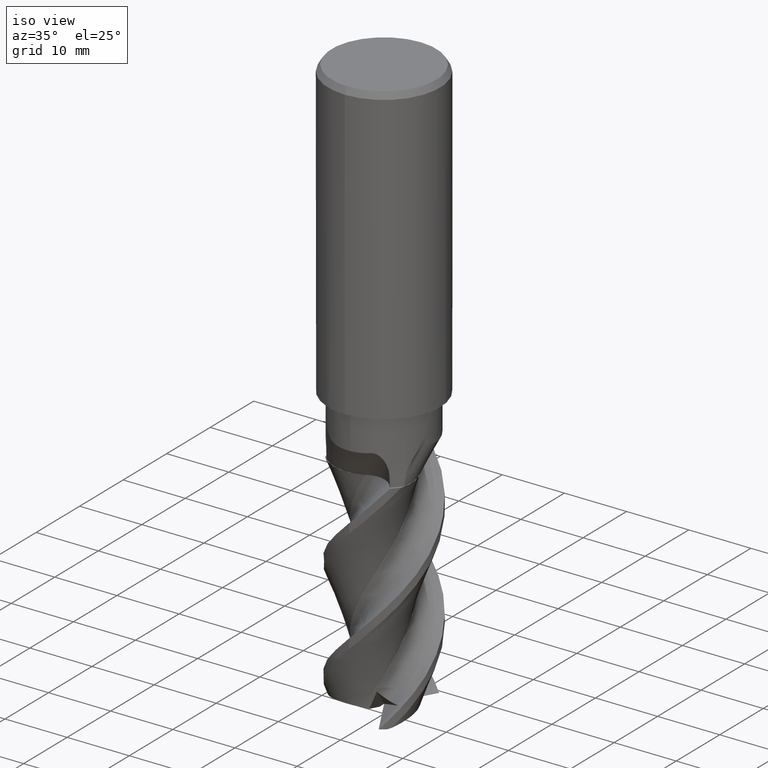
[diagram: clean part render]
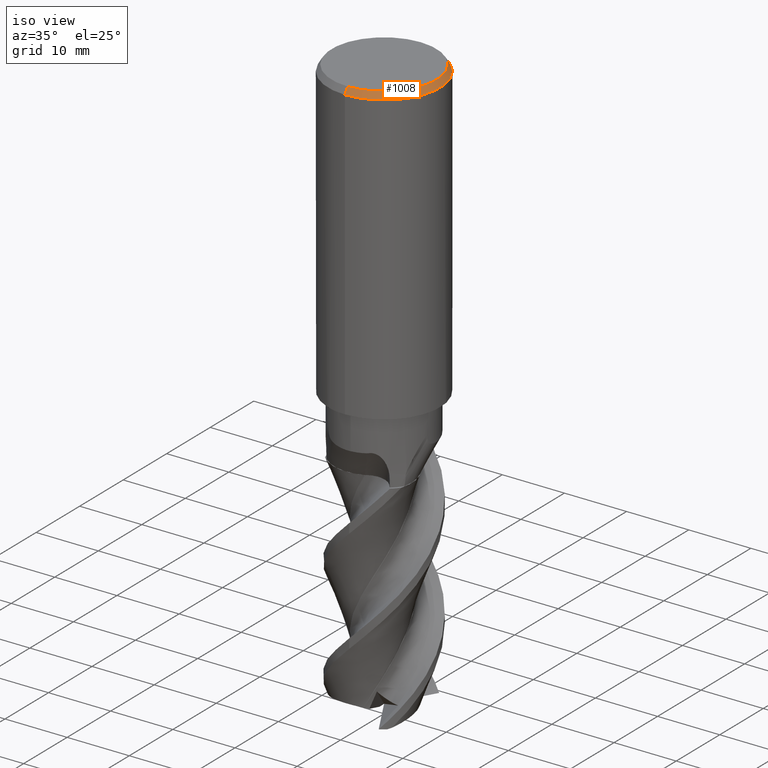
[diagram: same view with one face highlighted and labeled with its STEP entity id]
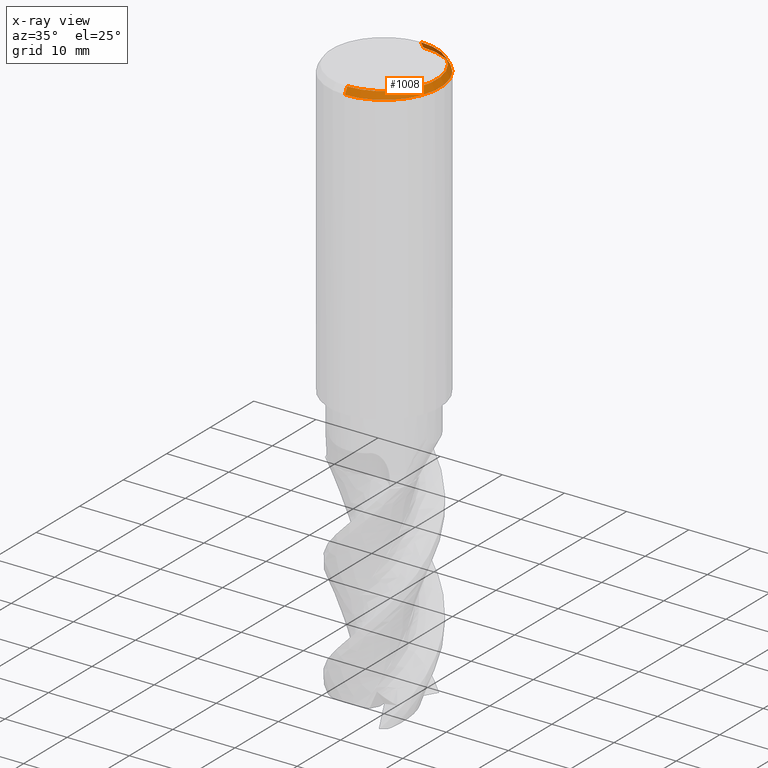
[diagram: x-ray of the same camera — body ghosted, the highlighted face saturated]
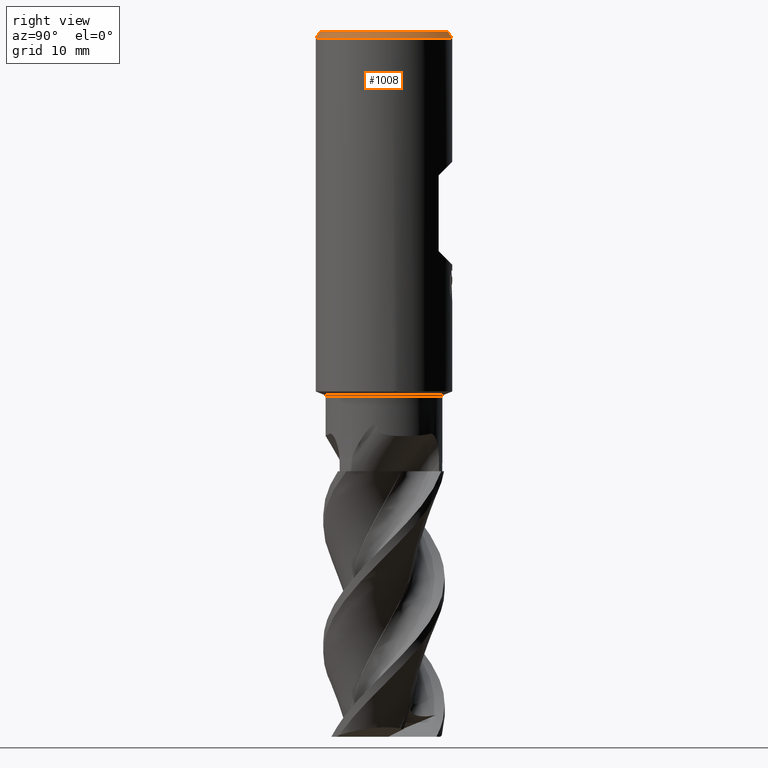
[diagram: same view with one face highlighted and labeled with its STEP entity id]
A machine part, iso view. The second image highlights one B-rep face of the part: STEP entity #1008.
The next image is the same camera in x-ray: the body ghosted, the highlighted face saturated — about 0% of this face is hidden behind the body in this view.
A second angle (right view) of the same face is appended — the face is thin or edge-on in the first view.
In plain terms, the highlighted conical surface has half-angle 30 deg.
Its self-contained STEP definition (entity closure, byte-faithful):
#600=VERTEX_POINT('',#1544);
#626=EDGE_CURVE('',#780,#600,#1573,.T.);
#780=VERTEX_POINT('',#1744);
#956=VERTEX_POINT('',#1930);
#1008=ADVANCED_FACE('',(#1987),#1988,.T.);
#1048=EDGE_CURVE('',#780,#956,#2032,.T.);
#1098=EDGE_CURVE('',#956,#1216,#2083,.T.);
#1216=VERTEX_POINT('',#2210);
#1266=EDGE_CURVE('',#1216,#600,#2266,.T.);
#1544=CARTESIAN_POINT('',(1.03144303763707E-015,-8.42264973081037,0.0));
#1573=CIRCLE('',#3521,8.42264973081037);
#1744=CARTESIAN_POINT('',(0.0,8.42264973081037,0.0));
#1930=CARTESIAN_POINT('',(0.0,9.0,-1.0));
#1987=FACE_OUTER_BOUND('',#6757,.T.);
#1988=CONICAL_SURFACE('',#6758,8.71132486540519,0.523598775598299);
#2032=LINE('',#7254,#7255);
#2083=CIRCLE('',#7492,9.0);
#2210=CARTESIAN_POINT('',(1.10214571844014E-015,-9.0,-1.0));
#2266=LINE('',#8990,#8991);
#3521=AXIS2_PLACEMENT_3D('',#10605,#10606,#10607);
#6757=EDGE_LOOP('',(#11101,#11102,#11103,#11104));
#6758=AXIS2_PLACEMENT_3D('',#11105,#11106,#11107);
#7254=CARTESIAN_POINT('',(-1.06679437803861E-015,8.71132486540519,-0.5));
#7255=VECTOR('',#11158,1.0);
#7492=AXIS2_PLACEMENT_3D('',#11177,#11178,#11179);
#8990=CARTESIAN_POINT('',(1.06679437803861E-015,-8.71132486540519,-0.5));
#8991=VECTOR('',#11395,1.0);
#10605=CARTESIAN_POINT('',(0.0,0.0,0.0));
#10606=DIRECTION('',(0.0,0.0,-1.0));
#10607=DIRECTION('',(0.0,1.0,0.0));
#11101=ORIENTED_EDGE('',*,*,#1048,.F.);
#11102=ORIENTED_EDGE('',*,*,#626,.T.);
#11103=ORIENTED_EDGE('',*,*,#1266,.F.);
#11104=ORIENTED_EDGE('',*,*,#1098,.F.);
#11105=CARTESIAN_POINT('',(0.0,0.0,-0.5));
#11106=DIRECTION('',(0.0,-0.0,-1.0));
#11107=DIRECTION('',(0.0,1.0,0.0));
#11158=DIRECTION('',(-6.12303176911189E-017,0.5,-0.866025403784438));
#11177=CARTESIAN_POINT('',(0.0,0.0,-1.0));
#11178=DIRECTION('',(0.0,0.0,-1.0));
#11179=DIRECTION('',(0.0,1.0,0.0));
#11395=DIRECTION('',(-6.12303176911189E-017,0.5,0.866025403784438));